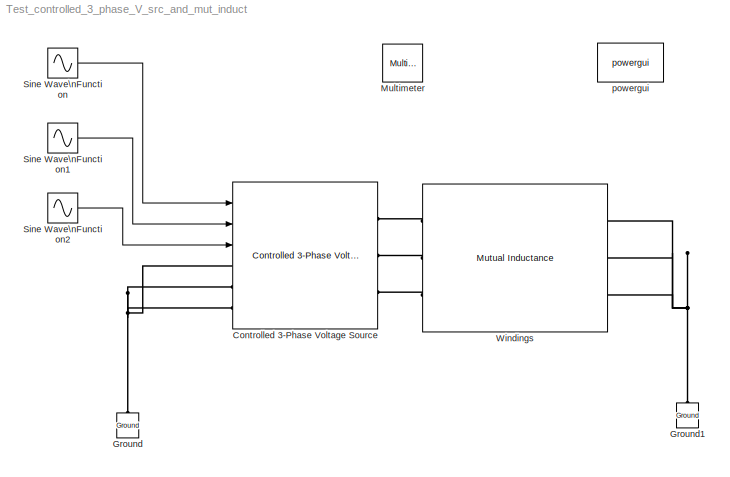
MODEL Test_controlled_3_phase_V_src_and_mut_induct
KIND model
BLOCK [Reference] Controlled 3-Phase Voltage Source  REF=pm_machines_library/Controlled 3-Phase Voltage Source  (lib defined in slx_81e85edba9f0)
  FunctionWithSeparateData = off
  GeneratePreprocessorConditionals = off
  Ports = [3, 0, 0, 0, 0, 3, 3]
  RTWMemSecDataConstants = Inherit from model
  RTWMemSecDataInternal = Inherit from model
  RTWMemSecDataParameters = Inherit from model
  RTWMemSecFuncExecute = Inherit from model
  RTWMemSecFuncInitTerm = Inherit from model
  SID = 1
  ShowPortLabels = FromPortIcon
  SourceBlock = pm_machines_library/Controlled 3-Phase Voltage Source
  SourceType = Controlled 3-Phase Voltage Source
  SystemSampleTime = -1
BLOCK [Reference] Ground  REF=powerlib/Elements/Ground
  LConnTagsString = a
  LeftPortType = p1
  PhysicalDomain = powersysdomain
  Ports = [0, 0, 0, 0, 0, 1]
  RightPortType = p1
  SID = 2
  SourceBlock = powerlib/Elements/Ground
  SourceType = Ground
  SubClassName = unknown
BLOCK [Reference] Ground1  REF=powerlib/Elements/Ground
  LConnTagsString = a
  LeftPortType = p1
  PhysicalDomain = powersysdomain
  Ports = [0, 0, 0, 0, 0, 1]
  RightPortType = p1
  SID = 3
  SourceBlock = powerlib/Elements/Ground
  SourceType = Ground
  SubClassName = unknown
BLOCK [Reference] Multimeter  REF=powerlib/Measurements/Multimeter
  AxesSetting = [0,0.1,-100,100]
  Display = 1
  FunctionWithSeparateData = off
  Gain = [1 1 1 1 1 1]
  GeneratePreprocessorConditionals = off
  L = 6
  OutputType = Complex
  PSBOutputType = 1
  PSBequivalent = 0
  PhasorSimulation = off
  Ports = [0, 1, 0, 0, 0, 1]
  RTWMemSecDataConstants = Inherit from model
  RTWMemSecDataInternal = Inherit from model
  RTWMemSecDataParameters = Inherit from model
  RTWMemSecFuncExecute = Inherit from model
  RTWMemSecFuncInitTerm = Inherit from model
  SID = 14
  SavedBlockNames = -11
  ShowPortLabels = FromPortIcon
  SourceBlock = powerlib/Measurements/Multimeter
  SourceType = MultimeterPSB
  SystemSampleTime = -1
  sel = [1 4 2 5 3 6]
  yselected = {'Uw1: Windings','Iw1: Windings','Uw2: Windings','Iw2: Windings','Uw3: Windings','Iw3: Windings'};
BLOCK [Sin] Sine Wave\nFunction
  Frequency = 6.28
  Ports = [0, 1]
  SID = 7
  SampleTime = 0
BLOCK [Sin] Sine Wave\nFunction1
  Frequency = 6.28
  Phase = 2.0944
  Ports = [0, 1]
  SID = 8
  SampleTime = 0
BLOCK [Sin] Sine Wave\nFunction2
  Frequency = 6.28
  Phase = 4.188
  Ports = [0, 1]
  SID = 9
  SampleTime = 0
BLOCK [Reference] Windings  REF=powerlib/Elements/Mutual Inductance
  AttributesFormatString = \\n
  InductanceMatrix = [1.0 0.9  0.9 ;  0.9 1.0  0.9;  0.9 0.9 1.0 ] * 1e-3
  LConnTagsString = a|b|c
  LeftPortType = p1
  Measurements = Winding voltages and currents
  MutualImpedance = [0 0.0119]
  NumberOfWindings = 3
  PhysicalDomain = powersysdomain
  Ports = [0, 0, 0, 0, 0, 3, 3]
  RConnTagsString = A|B|C
  ResistanceMatrix = [1.0 0.9  0.9 ;  0.9 1.0  0.9;  0.9 0.9 1.0 ]
  RightPortType = p1
  SID = 5
  SelfImpedance1 = [44.03 0.3064]
  SelfImpedance2 = [44.03 0.3064]
  SelfImpedance3 = [44.03 0.3064]
  SourceBlock = powerlib/Elements/Mutual Inductance
  SourceType = Mutual Inductance
  SubClassName = unknown
  ThreeWindings = on
  TypeOfMutual = Two or three windings with equal mutual terms
BLOCK [Reference] powergui  REF=powerlib/powergui
  DisableRonSwitches = off
  DisableSnubberDevices = off
  DisableVfSwitches = off
  DisplayEquations = off
  DisplayStyle = 1
  EnableUseOfTLC = off
  ErrMax = 1e-4
  FreqAxis = off
  FunctionMessages = off
  FunctionWithSeparateData = off
  GeneratePreprocessorConditionals = off
  HookPort = off
  Interpol = off
  Iterations = 50
  MaxFrequency = 1000
  Pbase = 100e6
  Ports = []
  Priority = 1
  RTWMemSecDataConstants = Inherit from model
  RTWMemSecDataInternal = Inherit from model
  RTWMemSecDataParameters = Inherit from model
  RTWMemSecFuncExecute = Inherit from model
  RTWMemSecFuncInitTerm = Inherit from model
  ResistiveCurrentMeasurement = off
  RestoreLinks = warning
  SID = 6
  SPID = off
  SampleTime = 50e-6
  ShowGrid = off
  ShowPortLabels = FromPortIcon
  SourceBlock = powerlib/powergui
  SourceType = PSB option menu block
  StartTime = 0.0
  SwTol = 0
  SystemSampleTime = -1
  UnitsV = kV
  UnitsW = MW
  UserData = DataTag0
  UserDataPersistent = on
  Xlog = on
  Ylog = off
  ZoomFFT = off
  cycles = 1
  display = off
  echomessages = off
  frequency = 60
  frequencyindice = 0
  frequencyindicesteady = 1
  methode = off
  save = off
  variable = ZData
  x0status = blocks
LINE Sine Wave\nFunction1:1 -> Controlled 3-Phase Voltage Source:2
LINE Sine Wave\nFunction2:1 -> Controlled 3-Phase Voltage Source:3
LINE Sine Wave\nFunction:1 -> Controlled 3-Phase Voltage Source:1
PNET net1: Controlled 3-Phase Voltage Source:LConn1 -- Controlled 3-Phase Voltage Source:LConn2 -- Controlled 3-Phase Voltage Source:LConn3 -- Ground:LConn1
PLINE Controlled 3-Phase Voltage Source:RConn1 -- Windings:LConn1
PLINE Controlled 3-Phase Voltage Source:RConn2 -- Windings:LConn2
PLINE Controlled 3-Phase Voltage Source:RConn3 -- Windings:LConn3
PNET net2: Ground1:LConn1 -- Windings:RConn1 -- Windings:RConn2 -- Windings:RConn3
note: PNET lines group multi-terminal physical nets as a canonical sorted terminal list (undirected conserving connections); 2-terminal nets keep the pairwise PLINE form
